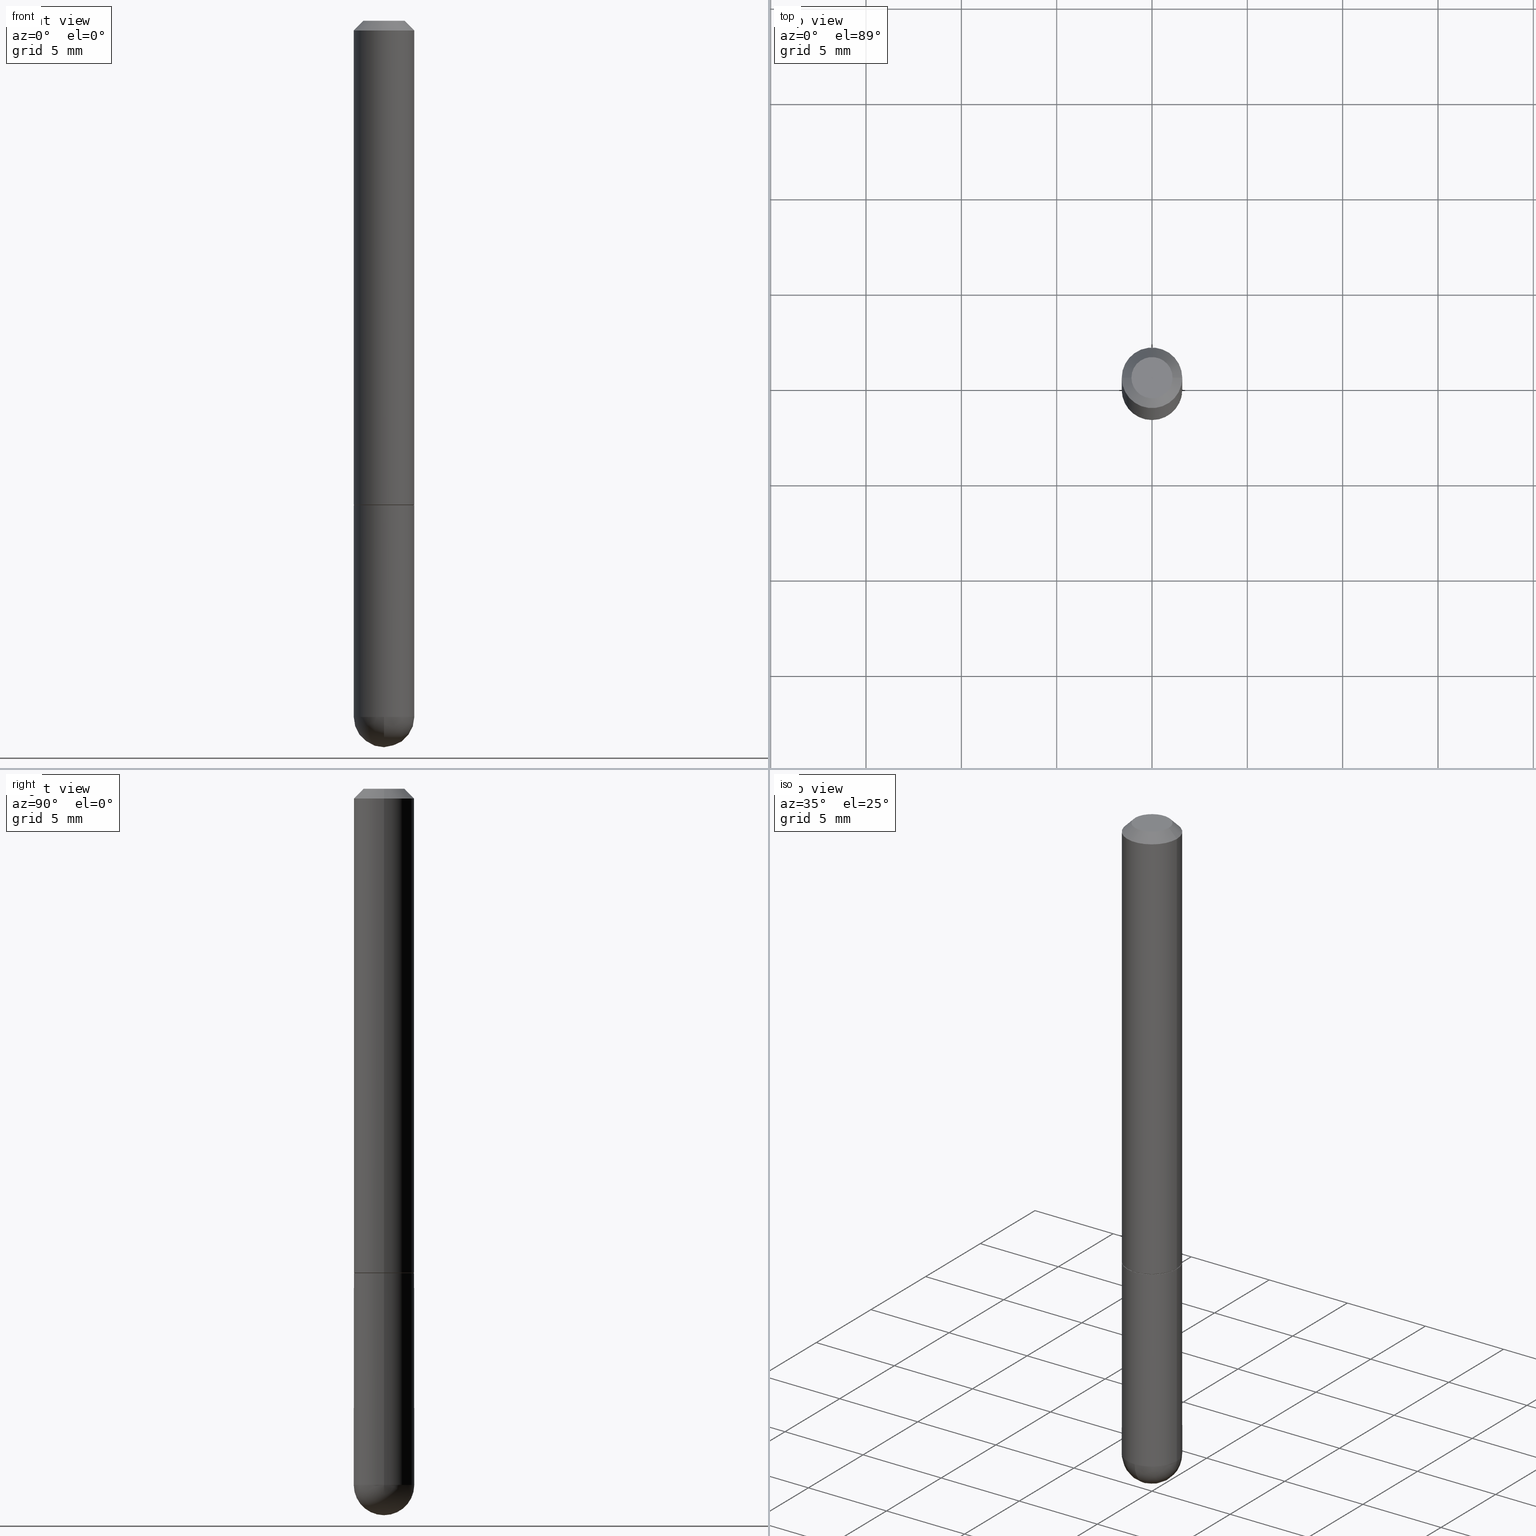
[diagram: canonical four-view strip — front | top / right | iso, engineering-drawing reading convention]
A machine part, canonical four-view strip (front | top / right | iso — engineering-drawing reading convention). The complete STEP part file that produces these views, byte-faithful:
ISO-10303-21;
HEADER;
FILE_DESCRIPTION (( 'STEP AP203' ),
    '1' );
FILE_NAME ('30116.STEP',
    '2024-02-21T16:35:18',
    ( '' ),
    ( '' ),
    'SwSTEP 2.0',
    'SolidWorks 2023',
    '' );
FILE_SCHEMA (( 'CONFIG_CONTROL_DESIGN' ));
ENDSEC;

DATA;
#1 = ORIENTED_EDGE ( 'NONE', *, *, #375, .F. ) ;
#2 = ORIENTED_EDGE ( 'NONE', *, *, #218, .T. ) ;
#3 = FACE_OUTER_BOUND ( 'NONE', #340, .T. ) ;
#4 = AXIS2_PLACEMENT_3D ( 'NONE', #50, #75, #80 ) ;
#5 = CARTESIAN_POINT ( 'NONE',  ( -0.06149999999999999911, -3.054497556350684369E-15, -1.000000000000000222 ) ) ;
#6 = APPROVAL ( #272, 'UNSPECIFIED' ) ;
#7 = EDGE_LOOP ( 'NONE', ( #401, #101, #261, #12 ) ) ;
#8 = ORIENTED_EDGE ( 'NONE', *, *, #312, .T. ) ;
#9 = DIRECTION ( 'NONE',  ( 1.000000000000000000, -6.982962677686269866E-15, 0.000000000000000000 ) ) ;
#10 = ORIENTED_EDGE ( 'NONE', *, *, #297, .F. ) ;
#11 = FACE_OUTER_BOUND ( 'NONE', #71, .T. ) ;
#12 = ORIENTED_EDGE ( 'NONE', *, *, #77, .F. ) ;
#13 = CARTESIAN_POINT ( 'NONE',  ( 3.515361408891134418E-29, -5.019004424587023131E-15, -1.437500000000000222 ) ) ;
#14 = EDGE_LOOP ( 'NONE', ( #256, #240, #171, #108 ) ) ;
#15 = EDGE_CURVE ( 'NONE', #131, #214, #356, .T. ) ;
#16 = CARTESIAN_POINT ( 'NONE',  ( 2.443023337378951835E-29, -3.487989857504302970E-15, -0.9990000000000002212 ) ) ;
#17 = DIRECTION ( 'NONE',  ( 1.000000000000000000, -6.982962677686266711E-15, 4.876176775795935793E-29 ) ) ;
#18 = DIRECTION ( 'NONE',  ( -2.445468806185136597E-29, 3.491481338843145583E-15, 1.000000000000000000 ) ) ;
#19 = CONICAL_SURFACE ( 'NONE', #156, 0.06149999999999999911, 0.7853981633975507526 ) ;
#20 = EDGE_CURVE ( 'NONE', #144, #248, #350, .T. ) ;
#21 = FACE_OUTER_BOUND ( 'NONE', #73, .T. ) ;
#22 =( NAMED_UNIT ( * ) PLANE_ANGLE_UNIT ( ) SI_UNIT ( $, .RADIAN. ) );
#23 = EDGE_CURVE ( 'NONE', #176, #196, #49, .T. ) ;
#24 = AXIS2_PLACEMENT_3D ( 'NONE', #34, #219, #93 ) ;
#25 = PERSON_AND_ORGANIZATION_ROLE ( 'design_owner' ) ;
#26 = DATE_AND_TIME ( #405, #120 ) ;
#27 = CC_DESIGN_PERSON_AND_ORGANIZATION_ASSIGNMENT ( #125, #57, ( #298 ) ) ;
#28 = AXIS2_PLACEMENT_3D ( 'NONE', #166, #282, #412 ) ;
#29 = DATE_AND_TIME ( #56, #88 ) ;
#30 = AXIS2_PLACEMENT_3D ( 'NONE', #410, #192, #316 ) ;
#31 = FACE_OUTER_BOUND ( 'NONE', #307, .T. ) ;
#32 = DIRECTION ( 'NONE',  ( 1.000000000000000000, -6.982962677686268288E-15, 0.000000000000000000 ) ) ;
#33 = VERTEX_POINT ( 'NONE', #63 ) ;
#34 = CARTESIAN_POINT ( 'NONE',  ( 4.890937612370289799E-31, -6.982962677686315028E-17, -0.02000000000000006981 ) ) ;
#35 = DIRECTION ( 'NONE',  ( 1.000000000000000000, -6.982962677686266711E-15, 4.852736867747410488E-29 ) ) ;
#36 = ORIENTED_EDGE ( 'NONE', *, *, #390, .F. ) ;
#37 = LINE ( 'NONE', #5, #360 ) ;
#38 = AXIS2_PLACEMENT_3D ( 'NONE', #230, #105, #43 ) ;
#39 = DIRECTION ( 'NONE',  ( 1.000000000000000000, -6.982962677686265922E-15, 4.876176775795935793E-29 ) ) ;
#40 = DIRECTION ( 'NONE',  ( -2.445468806185136877E-29, 3.491481338843145188E-15, 1.000000000000000000 ) ) ;
#41 = EDGE_CURVE ( 'NONE', #196, #131, #274, .T. ) ;
#42 = DIRECTION ( 'NONE',  ( -1.000000000000000000, 7.105427357601001070E-15, -4.926315508542082329E-29 ) ) ;
#43 = DIRECTION ( 'NONE',  ( 1.000000000000000000, -6.982962677686269866E-15, 0.000000000000000000 ) ) ;
#44 = DIMENSIONAL_EXPONENTS ( 1.000000000000000000, 0.000000000000000000, 0.000000000000000000, 0.000000000000000000, 0.000000000000000000, 0.000000000000000000, 0.000000000000000000 ) ;
#45 = ADVANCED_FACE ( 'NONE', ( #379 ), #280, .T. ) ;
#46 =( GEOMETRIC_REPRESENTATION_CONTEXT ( 3 ) GLOBAL_UNCERTAINTY_ASSIGNED_CONTEXT ( ( #130 ) ) GLOBAL_UNIT_ASSIGNED_CONTEXT ( ( #398, #22, #112 ) ) REPRESENTATION_CONTEXT ( 'NONE', 'WORKASPACE' ) );
#47 = APPLICATION_PROTOCOL_DEFINITION ( 'international standard', 'config_control_design', 1994, #55 ) ;
#48 = FACE_OUTER_BOUND ( 'NONE', #323, .T. ) ;
#49 = CIRCLE ( 'NONE', #243, 0.06249999999999995143 ) ;
#50 = CARTESIAN_POINT ( 'NONE',  ( 2.445468806185136877E-29, -3.491481338843145977E-15, -1.000000000000000222 ) ) ;
#51 = CC_DESIGN_PERSON_AND_ORGANIZATION_ASSIGNMENT ( #87, #25, ( #395 ) ) ;
#52 = AXIS2_PLACEMENT_3D ( 'NONE', #299, #146, #264 ) ;
#53 = DIRECTION ( 'NONE',  ( -1.000000000000000000, 6.982962677686265922E-15, -4.883557194083112340E-29 ) ) ;
#54 = ORIENTED_EDGE ( 'NONE', *, *, #308, .T. ) ;
#55 = APPLICATION_CONTEXT ( 'configuration controlled 3d designs of mechanical parts and assemblies' ) ;
#56 = CALENDAR_DATE ( 2024, 21, 2 ) ;
#57 = PERSON_AND_ORGANIZATION_ROLE ( 'design_supplier' ) ;
#58 = DATE_AND_TIME ( #344, #239 ) ;
#59 = DATE_AND_TIME ( #155, #132 ) ;
#60 = CARTESIAN_POINT ( 'NONE',  ( 3.515361408891134418E-29, -5.019004424587023131E-15, -1.437500000000000222 ) ) ;
#61 = CIRCLE ( 'NONE', #300, 0.06250000000000000000 ) ;
#62 = FACE_OUTER_BOUND ( 'NONE', #224, .T. ) ;
#63 = CARTESIAN_POINT ( 'NONE',  ( 0.06249999999999995143, -4.986107516375835278E-16, -0.02000000000000006981 ) ) ;
#64 = DIRECTION ( 'NONE',  ( -1.000000000000000000, 6.982962677686265922E-15, -4.876176775795935793E-29 ) ) ;
#65 = VERTEX_POINT ( 'NONE', #158 ) ;
#66 = DIRECTION ( 'NONE',  ( -0.7071067811865469066, 2.468850131082251144E-15, -0.7071067811865479058 ) ) ;
#67 = ORIENTED_EDGE ( 'NONE', *, *, #234, .T. ) ;
#68 = DIRECTION ( 'NONE',  ( -2.445468806185136597E-29, 3.491481338843145583E-15, 1.000000000000000000 ) ) ;
#69 = APPROVAL_PERSON_ORGANIZATION ( #381, #6, #94 ) ;
#70 = VECTOR ( 'NONE', #355, 39.37007874015748143 ) ;
#71 = EDGE_LOOP ( 'NONE', ( #104, #81 ) ) ;
#72 = DIRECTION ( 'NONE',  ( -2.445468806185136597E-29, 3.491481338843145583E-15, 1.000000000000000000 ) ) ;
#73 = EDGE_LOOP ( 'NONE', ( #318, #198, #1, #209 ) ) ;
#74 = CARTESIAN_POINT ( 'NONE',  ( 3.184241630977247611E-29, -5.493186792727071849E-15, -1.437500000000000000 ) ) ;
#75 = DIRECTION ( 'NONE',  ( -2.445468806185136597E-29, 3.491481338843145583E-15, 1.000000000000000000 ) ) ;
#76 = AXIS2_PLACEMENT_3D ( 'NONE', #13, #68, #200 ) ;
#77 = EDGE_CURVE ( 'NONE', #343, #203, #110, .T. ) ;
#78 = DIRECTION ( 'NONE',  ( -2.445468806185136597E-29, 3.491481338843145583E-15, 1.000000000000000000 ) ) ;
#79 = MANIFOLD_SOLID_BREP ( 'Body-Move/Copy2[1]', #338 ) ;
#80 = DIRECTION ( 'NONE',  ( 1.000000000000000000, -6.982962677686262766E-15, 0.000000000000000000 ) ) ;
#81 = ORIENTED_EDGE ( 'NONE', *, *, #363, .T. ) ;
#82 = CIRCLE ( 'NONE', #38, 0.06149999999999999911 ) ;
#83 = DESIGN_CONTEXT ( 'detailed design', #96, 'design' ) ;
#84 = ADVANCED_FACE ( 'NONE', ( #31 ), #98, .T. ) ;
#85 = APPROVAL_ROLE ( '' ) ;
#86 = ORIENTED_EDGE ( 'NONE', *, *, #363, .F. ) ;
#87 = PERSON_AND_ORGANIZATION ( #334, #160 ) ;
#88 = LOCAL_TIME ( 11, 35, 18.00000000000000000, #409 ) ;
#89 = PERSON_AND_ORGANIZATION ( #334, #160 ) ;
#90 = VECTOR ( 'NONE', #262, 39.37007874015748143 ) ;
#91 = CALENDAR_DATE ( 2024, 21, 2 ) ;
#92 = VERTEX_POINT ( 'NONE', #249 ) ;
#93 = DIRECTION ( 'NONE',  ( -1.000000000000000000, 6.982962677686266711E-15, 0.000000000000000000 ) ) ;
#94 = APPROVAL_ROLE ( '' ) ;
#95 = DIRECTION ( 'NONE',  ( 2.438088387897960049E-29, -3.491481338843145188E-15, -1.000000000000000000 ) ) ;
#96 = APPLICATION_CONTEXT ( 'configuration controlled 3d designs of mechanical parts and assemblies' ) ;
#97 = EDGE_LOOP ( 'NONE', ( #106, #2, #351, #250 ) ) ;
#98 = CONICAL_SURFACE ( 'NONE', #28, 0.06249999999999995143, 0.7853981633974476129 ) ;
#99 = CLOSED_SHELL ( 'NONE', ( #258, #383, #121, #84, #411, #139, #147, #352 ) ) ;
#100 = DIRECTION ( 'NONE',  ( 6.982962677686265922E-15, 1.000000000000000000, -4.370956789862807739E-15 ) ) ;
#101 = ORIENTED_EDGE ( 'NONE', *, *, #288, .T. ) ;
#102 = LINE ( 'NONE', #177, #90 ) ;
#103 = EDGE_LOOP ( 'NONE', ( #330, #291, #67, #251 ) ) ;
#104 = ORIENTED_EDGE ( 'NONE', *, *, #404, .T. ) ;
#105 = DIRECTION ( 'NONE',  ( -2.445468806185136597E-29, 3.491481338843145583E-15, 1.000000000000000000 ) ) ;
#106 = ORIENTED_EDGE ( 'NONE', *, *, #20, .T. ) ;
#107 = AXIS2_PLACEMENT_3D ( 'NONE', #153, #206, #232 ) ;
#108 = ORIENTED_EDGE ( 'NONE', *, *, #234, .F. ) ;
#109 = DIRECTION ( 'NONE',  ( -2.445468806185136877E-29, 3.491481338843145188E-15, 1.000000000000000000 ) ) ;
#110 = CIRCLE ( 'NONE', #30, 0.06250000000000013878 ) ;
#111 = CARTESIAN_POINT ( 'NONE',  ( 0.06149999999999999911, -3.920933543520851632E-15, -1.000000000000000222 ) ) ;
#112 =( NAMED_UNIT ( * ) SI_UNIT ( $, .STERADIAN. ) SOLID_ANGLE_UNIT ( ) );
#113 = CYLINDRICAL_SURFACE ( 'NONE', #241, 0.06249999999999997224 ) ;
#114 = APPROVAL_PERSON_ORGANIZATION ( #89, #277, #220 ) ;
#115 = CIRCLE ( 'NONE', #4, 0.06250000000000000000 ) ;
#116 = CARTESIAN_POINT ( 'NONE',  ( 0.000000000000000000, 0.000000000000000000, 0.000000000000000000 ) ) ;
#117 = DIRECTION ( 'NONE',  ( -2.445468806185136597E-29, 3.491481338843145583E-15, 1.000000000000000000 ) ) ;
#118 = DIRECTION ( 'NONE',  ( -2.445468806185136597E-29, 3.491481338843145583E-15, 1.000000000000000000 ) ) ;
#119 = DIRECTION ( 'NONE',  ( -2.445468806185136597E-29, 3.491481338843145583E-15, 1.000000000000000000 ) ) ;
#120 = LOCAL_TIME ( 11, 35, 18.00000000000000000, #382 ) ;
#121 = ADVANCED_FACE ( 'NONE', ( #322 ), #129, .T. ) ;
#122 = CARTESIAN_POINT ( 'NONE',  ( 0.000000000000000000, 0.000000000000000000, 0.000000000000000000 ) ) ;
#123 = PLANE ( 'NONE',  #151 ) ;
#124 = PERSON_AND_ORGANIZATION ( #334, #160 ) ;
#125 = PERSON_AND_ORGANIZATION ( #334, #160 ) ;
#126 = PRODUCT_DEFINITION ( 'UNKNOWN', '', #298, #83 ) ;
#127 = ORIENTED_EDGE ( 'NONE', *, *, #297, .T. ) ;
#128 = DIRECTION ( 'NONE',  ( 1.000000000000000000, -6.982962677686266711E-15, 4.876176775795935793E-29 ) ) ;
#129 = CONICAL_SURFACE ( 'NONE', #24, 0.06249999999999995143, 0.7853981633974476129 ) ;
#130 = UNCERTAINTY_MEASURE_WITH_UNIT (LENGTH_MEASURE( 1.000000000000000082E-05 ), #398, 'distance_accuracy_value', 'NONE');
#131 = VERTEX_POINT ( 'NONE', #284 ) ;
#132 = LOCAL_TIME ( 11, 35, 18.00000000000000000, #242 ) ;
#133 = PLANE ( 'NONE',  #183 ) ;
#134 = ORIENTED_EDGE ( 'NONE', *, *, #375, .T. ) ;
#135 = AXIS2_PLACEMENT_3D ( 'NONE', #400, #53, #184 ) ;
#136 = DIRECTION ( 'NONE',  ( -0.7071067811866199593, 7.493145998870616062E-15, 0.7071067811864750752 ) ) ;
#137 = ORIENTED_EDGE ( 'NONE', *, *, #15, .T. ) ;
#138 = CARTESIAN_POINT ( 'NONE',  ( 0.06250000000000004163, -4.364351673553919652E-16, 3.047610484872461972E-30 ) ) ;
#139 = ADVANCED_FACE ( 'NONE', ( #278 ), #19, .T. ) ;
#140 = EDGE_LOOP ( 'NONE', ( #10, #227, #194, #137, #86 ) ) ;
#141 = CC_DESIGN_APPROVAL ( #277, ( #287 ) ) ;
#142 = DIRECTION ( 'NONE',  ( -2.445468806185136877E-29, 3.491481338843145188E-15, 1.000000000000000000 ) ) ;
#143 = EDGE_CURVE ( 'NONE', #372, #201, #182, .T. ) ;
#144 = VERTEX_POINT ( 'NONE', #111 ) ;
#145 = AXIS2_PLACEMENT_3D ( 'NONE', #222, #225, #195 ) ;
#146 = DIRECTION ( 'NONE',  ( -2.445468806185136597E-29, 3.491481338843145583E-15, 1.000000000000000000 ) ) ;
#147 = ADVANCED_FACE ( 'NONE', ( #48 ), #123, .F. ) ;
#148 = CARTESIAN_POINT ( 'NONE',  ( 0.000000000000000000, 0.000000000000000000, 0.000000000000000000 ) ) ;
#149 = DIRECTION ( 'NONE',  ( 1.000000000000000000, -6.982962677686270655E-15, 0.000000000000000000 ) ) ;
#150 = ADVANCED_BREP_SHAPE_REPRESENTATION ( '30116', ( #79, #233, #407 ), #46 ) ;
#151 = AXIS2_PLACEMENT_3D ( 'NONE', #263, #229, #39 ) ;
#152 = DIRECTION ( 'NONE',  ( 1.000000000000000000, -6.982962677686268288E-15, 0.000000000000000000 ) ) ;
#153 = CARTESIAN_POINT ( 'NONE',  ( 3.184241630977247611E-29, -5.493186792727071849E-15, -1.437500000000000000 ) ) ;
#154 = CARTESIAN_POINT ( 'NONE',  ( 2.445468806185136877E-29, -3.491481338843145977E-15, -1.000000000000000222 ) ) ;
#155 = CALENDAR_DATE ( 2024, 21, 2 ) ;
#156 = AXIS2_PLACEMENT_3D ( 'NONE', #154, #117, #235 ) ;
#157 = DATE_TIME_ROLE ( 'creation_date' ) ;
#158 = CARTESIAN_POINT ( 'NONE',  ( 4.364351673554256397E-16, 0.06249999999999480971, -1.437500000000000444 ) ) ;
#159 = ADVANCED_FACE ( 'NONE', ( #11 ), #292, .F. ) ;
#160 = ORGANIZATION ( 'UNSPECIFIED', 'UNSPECIFIED', '' ) ;
#161 = DATE_TIME_ROLE ( 'classification_date' ) ;
#162 = ORIENTED_EDGE ( 'NONE', *, *, #199, .T. ) ;
#163 = AXIS2_PLACEMENT_3D ( 'NONE', #16, #78, #149 ) ;
#164 = AXIS2_PLACEMENT_3D ( 'NONE', #253, #169, #128 ) ;
#165 = VERTEX_POINT ( 'NONE', #202 ) ;
#166 = CARTESIAN_POINT ( 'NONE',  ( 4.890937612370289799E-31, -6.982962677686315028E-17, -0.02000000000000006981 ) ) ;
#167 = ORIENTED_EDGE ( 'NONE', *, *, #143, .T. ) ;
#168 = CARTESIAN_POINT ( 'NONE',  ( 3.184241630977247611E-29, -5.493186792727071849E-15, -1.437500000000000000 ) ) ;
#169 = DIRECTION ( 'NONE',  ( -2.445468806185136597E-29, 3.491481338843145583E-15, 1.000000000000000000 ) ) ;
#170 = CARTESIAN_POINT ( 'NONE',  ( 3.515361408891134418E-29, -5.019004424587023131E-15, -1.437500000000000222 ) ) ;
#171 = ORIENTED_EDGE ( 'NONE', *, *, #358, .F. ) ;
#172 = CARTESIAN_POINT ( 'NONE',  ( -7.202574758913015802E-45, 1.028336787562508620E-30, 2.945273618169283567E-16 ) ) ;
#173 = VECTOR ( 'NONE', #66, 39.37007874015748854 ) ;
#174 = DIRECTION ( 'NONE',  ( -7.105427357601001859E-15, -1.000000000000000000, 0.000000000000000000 ) ) ;
#175 = ORIENTED_EDGE ( 'NONE', *, *, #288, .F. ) ;
#176 = VERTEX_POINT ( 'NONE', #289 ) ;
#177 = CARTESIAN_POINT ( 'NONE',  ( 0.06149999999999999911, -3.920933543520851632E-15, -1.000000000000000222 ) ) ;
#178 = LINE ( 'NONE', #197, #70 ) ;
#179 = ORIENTED_EDGE ( 'NONE', *, *, #143, .F. ) ;
#180 = DIRECTION ( 'NONE',  ( 0.7071067811865469066, -7.319954787623252890E-15, -0.7071067811865479058 ) ) ;
#181 = SPHERICAL_SURFACE ( 'NONE', #135, 0.06250000000000018041 ) ;
#182 = LINE ( 'NONE', #273, #173 ) ;
#183 = AXIS2_PLACEMENT_3D ( 'NONE', #387, #353, #64 ) ;
#184 = DIRECTION ( 'NONE',  ( 6.982962677686265922E-15, 1.000000000000000000, -4.370956789862807739E-15 ) ) ;
#185 = CC_DESIGN_DATE_AND_TIME_ASSIGNMENT ( #58, #157, ( #126 ) ) ;
#186 = EDGE_CURVE ( 'NONE', #343, #201, #361, .T. ) ;
#187 = CC_DESIGN_PERSON_AND_ORGANIZATION_ASSIGNMENT ( #314, #311, ( #126 ) ) ;
#188 = SECURITY_CLASSIFICATION_LEVEL ( 'unclassified' ) ;
#189 = ORIENTED_EDGE ( 'NONE', *, *, #199, .F. ) ;
#190 = SHAPE_DEFINITION_REPRESENTATION ( #207, #150 ) ;
#191 = APPROVAL_DATE_TIME ( #59, #6 ) ;
#192 = DIRECTION ( 'NONE',  ( -2.445468806185136597E-29, 3.491481338843145583E-15, 1.000000000000000000 ) ) ;
#193 = CIRCLE ( 'NONE', #76, 0.06249999999999995143 ) ;
#194 = ORIENTED_EDGE ( 'NONE', *, *, #41, .T. ) ;
#195 = DIRECTION ( 'NONE',  ( 1.000000000000000000, -6.982962677686266711E-15, 4.852736867747410488E-29 ) ) ;
#196 = VERTEX_POINT ( 'NONE', #321 ) ;
#197 = CARTESIAN_POINT ( 'NONE',  ( -0.06249999999999997224, 4.440892098500624190E-16, -3.074334431409315063E-30 ) ) ;
#198 = ORIENTED_EDGE ( 'NONE', *, *, #367, .T. ) ;
#199 = EDGE_CURVE ( 'NONE', #165, #372, #254, .T. ) ;
#200 = DIRECTION ( 'NONE',  ( 1.000000000000000000, -6.982962677686268288E-15, 0.000000000000000000 ) ) ;
#201 = VERTEX_POINT ( 'NONE', #204 ) ;
#202 = CARTESIAN_POINT ( 'NONE',  ( 0.04249999999999961448, -3.950909582714350189E-16, 2.945273618169308219E-16 ) ) ;
#203 = VERTEX_POINT ( 'NONE', #252 ) ;
#204 = CARTESIAN_POINT ( 'NONE',  ( -0.06249999999999995143, 3.666055405785281740E-16, -0.02000000000000006981 ) ) ;
#205 = AXIS2_PLACEMENT_3D ( 'NONE', #370, #118, #335 ) ;
#206 = DIRECTION ( 'NONE',  ( 1.000000000000000000, -6.982962677686265922E-15, 4.883557194083112340E-29 ) ) ;
#207 = PRODUCT_DEFINITION_SHAPE ( 'NONE', 'NONE',  #126 ) ;
#208 = DIRECTION ( 'NONE',  ( -2.445468806185136597E-29, 3.491481338843145583E-15, 1.000000000000000000 ) ) ;
#209 = ORIENTED_EDGE ( 'NONE', *, *, #41, .F. ) ;
#210 =( LENGTH_UNIT ( ) NAMED_UNIT ( * ) SI_UNIT ( $, .METRE. ) );
#211 = PRODUCT_RELATED_PRODUCT_CATEGORY ( 'detail', '', ( #395 ) ) ;
#212 = VECTOR ( 'NONE', #109, 39.37007874015748143 ) ;
#213 = CARTESIAN_POINT ( 'NONE',  ( 2.445468806185136877E-29, -3.491481338843145977E-15, -1.000000000000000222 ) ) ;
#214 = VERTEX_POINT ( 'NONE', #327 ) ;
#215 = APPROVAL_DATE_TIME ( #26, #345 ) ;
#216 = APPROVAL_STATUS ( 'not_yet_approved' ) ;
#217 = AXIS2_PLACEMENT_3D ( 'NONE', #359, #95, #295 ) ;
#218 = EDGE_CURVE ( 'NONE', #248, #343, #37, .T. ) ;
#219 = DIRECTION ( 'NONE',  ( 2.445468806185136597E-29, -3.491481338843145583E-15, -1.000000000000000000 ) ) ;
#220 = APPROVAL_ROLE ( '' ) ;
#221 = APPROVAL_STATUS ( 'not_yet_approved' ) ;
#222 = CARTESIAN_POINT ( 'NONE',  ( -7.202574758913015802E-45, 1.028336787562508620E-30, 2.945273618169283567E-16 ) ) ;
#223 = ORIENTED_EDGE ( 'NONE', *, *, #332, .T. ) ;
#224 = EDGE_LOOP ( 'NONE', ( #342, #228, #231, #319 ) ) ;
#225 = DIRECTION ( 'NONE',  ( -2.445468806185136597E-29, 3.491481338843145583E-15, 1.000000000000000000 ) ) ;
#226 = FACE_OUTER_BOUND ( 'NONE', #97, .T. ) ;
#227 = ORIENTED_EDGE ( 'NONE', *, *, #23, .T. ) ;
#228 = ORIENTED_EDGE ( 'NONE', *, *, #237, .T. ) ;
#229 = DIRECTION ( 'NONE',  ( -2.438088387897960049E-29, 3.491481338843145188E-15, 1.000000000000000000 ) ) ;
#230 = CARTESIAN_POINT ( 'NONE',  ( 2.445468806185136877E-29, -3.491481338843145977E-15, -1.000000000000000222 ) ) ;
#231 = ORIENTED_EDGE ( 'NONE', *, *, #23, .F. ) ;
#232 = DIRECTION ( 'NONE',  ( 6.982962677686266711E-15, 1.000000000000000000, 0.000000000000000000 ) ) ;
#233 = MANIFOLD_SOLID_BREP ( 'Body-Move/Copy2[2]', #99 ) ;
#234 = EDGE_CURVE ( 'NONE', #203, #33, #257, .T. ) ;
#235 = DIRECTION ( 'NONE',  ( 1.000000000000000000, -6.982962677686269866E-15, 0.000000000000000000 ) ) ;
#236 = FACE_OUTER_BOUND ( 'NONE', #103, .T. ) ;
#237 = EDGE_CURVE ( 'NONE', #354, #196, #380, .T. ) ;
#238 = CARTESIAN_POINT ( 'NONE',  ( 0.000000000000000000, 0.000000000000000000, 0.000000000000000000 ) ) ;
#239 = LOCAL_TIME ( 11, 35, 18.00000000000000000, #313 ) ;
#240 = ORIENTED_EDGE ( 'NONE', *, *, #186, .T. ) ;
#241 = AXIS2_PLACEMENT_3D ( 'NONE', #238, #119, #393 ) ;
#242 = COORDINATED_UNIVERSAL_TIME_OFFSET ( 5, 0, .BEHIND. ) ;
#243 = AXIS2_PLACEMENT_3D ( 'NONE', #60, #317, #32 ) ;
#244 = PERSON_AND_ORGANIZATION_ROLE ( 'creator' ) ;
#245 = DIRECTION ( 'NONE',  ( 0.000000000000000000, 0.000000000000000000, 1.000000000000000000 ) ) ;
#246 = CONICAL_SURFACE ( 'NONE', #385, 0.06149999999999999911, 0.7853981633975507526 ) ;
#247 = ADVANCED_FACE ( 'NONE', ( #62 ), #259, .T. ) ;
#248 = VERTEX_POINT ( 'NONE', #388 ) ;
#249 = CARTESIAN_POINT ( 'NONE',  ( -0.06250000000000000000, -3.811153671865022332E-15, -1.000000000000000222 ) ) ;
#250 = ORIENTED_EDGE ( 'NONE', *, *, #255, .F. ) ;
#251 = ORIENTED_EDGE ( 'NONE', *, *, #312, .F. ) ;
#252 = CARTESIAN_POINT ( 'NONE',  ( 0.06250000000000013878, -3.924425024859695428E-15, -0.9990000000000002212 ) ) ;
#253 = CARTESIAN_POINT ( 'NONE',  ( 0.000000000000000000, 0.000000000000000000, 0.000000000000000000 ) ) ;
#254 = CIRCLE ( 'NONE', #365, 0.04249999999999961448 ) ;
#255 = EDGE_CURVE ( 'NONE', #144, #203, #102, .T. ) ;
#256 = ORIENTED_EDGE ( 'NONE', *, *, #377, .T. ) ;
#257 = LINE ( 'NONE', #138, #315 ) ;
#258 = ADVANCED_FACE ( 'NONE', ( #226 ), #246, .T. ) ;
#259 = SPHERICAL_SURFACE ( 'NONE', #304, 0.06250000000000018041 ) ;
#260 = CARTESIAN_POINT ( 'NONE',  ( 2.445468806185136877E-29, -3.491481338843145977E-15, -1.000000000000000222 ) ) ;
#261 = ORIENTED_EDGE ( 'NONE', *, *, #255, .T. ) ;
#262 = DIRECTION ( 'NONE',  ( 0.7071067811866199593, -2.468850131083015945E-15, 0.7071067811864750752 ) ) ;
#263 = CARTESIAN_POINT ( 'NONE',  ( 2.445468806185136877E-29, -3.491481338843145977E-15, -1.000000000000000222 ) ) ;
#264 = DIRECTION ( 'NONE',  ( 1.000000000000000000, -6.982962677686266711E-15, 0.000000000000000000 ) ) ;
#265 = LOCAL_TIME ( 11, 35, 18.00000000000000000, #276 ) ;
#266 = DIRECTION ( 'NONE',  ( 1.000000000000000000, -6.982962677686262766E-15, 0.000000000000000000 ) ) ;
#267 = CC_DESIGN_PERSON_AND_ORGANIZATION_ASSIGNMENT ( #124, #406, ( #287 ) ) ;
#268 = CIRCLE ( 'NONE', #145, 0.04249999999999961448 ) ;
#269 = DIRECTION ( 'NONE',  ( 1.000000000000000000, -6.982962677686266711E-15, 4.876176775795935793E-29 ) ) ;
#270 = LINE ( 'NONE', #397, #373 ) ;
#271 = AXIS2_PLACEMENT_3D ( 'NONE', #366, #336, #152 ) ;
#272 = APPROVAL_STATUS ( 'not_yet_approved' ) ;
#273 = CARTESIAN_POINT ( 'NONE',  ( -0.06249999999999995143, 3.666055405785281740E-16, -0.02000000000000006981 ) ) ;
#274 = CIRCLE ( 'NONE', #281, 0.06249999999999995143 ) ;
#275 = PERSON_AND_ORGANIZATION ( #334, #160 ) ;
#276 = COORDINATED_UNIVERSAL_TIME_OFFSET ( 5, 0, .BEHIND. ) ;
#277 = APPROVAL ( #221, 'UNSPECIFIED' ) ;
#278 = FACE_OUTER_BOUND ( 'NONE', #7, .T. ) ;
#279 = CIRCLE ( 'NONE', #205, 0.06249999999999995143 ) ;
#280 = CYLINDRICAL_SURFACE ( 'NONE', #164, 0.06249999999999997224 ) ;
#281 = AXIS2_PLACEMENT_3D ( 'NONE', #170, #286, #408 ) ;
#282 = DIRECTION ( 'NONE',  ( 2.445468806185136597E-29, -3.491481338843145583E-15, -1.000000000000000000 ) ) ;
#283 = ORIENTED_EDGE ( 'NONE', *, *, #390, .T. ) ;
#284 = CARTESIAN_POINT ( 'NONE',  ( 0.06249999999999995143, -4.691678049070475040E-15, -1.437500000000000222 ) ) ;
#285 = CARTESIAN_POINT ( 'NONE',  ( -0.06250000000000013878, -1.334820532290516771E-15, -0.9990000000000002212 ) ) ;
#286 = DIRECTION ( 'NONE',  ( -2.445468806185136597E-29, 3.491481338843145583E-15, 1.000000000000000000 ) ) ;
#287 = SECURITY_CLASSIFICATION ( '', '', #188 ) ;
#288 = EDGE_CURVE ( 'NONE', #248, #144, #82, .T. ) ;
#289 = CARTESIAN_POINT ( 'NONE',  ( -0.06249999999999995143, -3.811153671865022332E-15, -1.437500000000000222 ) ) ;
#290 = CIRCLE ( 'NONE', #163, 0.06250000000000013878 ) ;
#291 = ORIENTED_EDGE ( 'NONE', *, *, #77, .T. ) ;
#292 = PLANE ( 'NONE',  #217 ) ;
#293 = DIRECTION ( 'NONE',  ( -2.445468806185136597E-29, 3.491481338843145583E-15, 1.000000000000000000 ) ) ;
#294 = ORIENTED_EDGE ( 'NONE', *, *, #20, .F. ) ;
#295 = DIRECTION ( 'NONE',  ( -1.000000000000000000, 6.982962677686265922E-15, -4.876176775795935793E-29 ) ) ;
#296 = ORIENTED_EDGE ( 'NONE', *, *, #404, .F. ) ;
#297 = EDGE_CURVE ( 'NONE', #176, #92, #178, .T. ) ;
#298 = PRODUCT_DEFINITION_FORMATION_WITH_SPECIFIED_SOURCE ( 'ANY', '', #395, .NOT_KNOWN. ) ;
#299 = CARTESIAN_POINT ( 'NONE',  ( 4.890937612370289799E-31, -6.982962677686315028E-17, -0.02000000000000006981 ) ) ;
#300 = AXIS2_PLACEMENT_3D ( 'NONE', #213, #368, #266 ) ;
#301 = VECTOR ( 'NONE', #40, 39.37007874015748143 ) ;
#302 = FACE_OUTER_BOUND ( 'NONE', #140, .T. ) ;
#303 = CC_DESIGN_DATE_AND_TIME_ASSIGNMENT ( #378, #161, ( #287 ) ) ;
#304 = AXIS2_PLACEMENT_3D ( 'NONE', #168, #389, #100 ) ;
#305 = FACE_OUTER_BOUND ( 'NONE', #14, .T. ) ;
#306 = LENGTH_MEASURE_WITH_UNIT ( LENGTH_MEASURE( 0.02539999999999999897 ), #210 );
#307 = EDGE_LOOP ( 'NONE', ( #36, #386, #167, #8 ) ) ;
#308 = EDGE_CURVE ( 'NONE', #65, #176, #193, .T. ) ;
#309 = CIRCLE ( 'NONE', #52, 0.06249999999999995143 ) ;
#310 = MECHANICAL_CONTEXT ( 'NONE', #55, 'mechanical' ) ;
#311 = PERSON_AND_ORGANIZATION_ROLE ( 'creator' ) ;
#312 = EDGE_CURVE ( 'NONE', #201, #33, #309, .T. ) ;
#313 = COORDINATED_UNIVERSAL_TIME_OFFSET ( 5, 0, .BEHIND. ) ;
#314 = PERSON_AND_ORGANIZATION ( #334, #160 ) ;
#315 = VECTOR ( 'NONE', #142, 39.37007874015748143 ) ;
#316 = DIRECTION ( 'NONE',  ( 1.000000000000000000, -6.982962677686270655E-15, 0.000000000000000000 ) ) ;
#317 = DIRECTION ( 'NONE',  ( -2.445468806185136597E-29, 3.491481338843145583E-15, 1.000000000000000000 ) ) ;
#318 = ORIENTED_EDGE ( 'NONE', *, *, #237, .F. ) ;
#319 = ORIENTED_EDGE ( 'NONE', *, *, #308, .F. ) ;
#320 = EDGE_LOOP ( 'NONE', ( #189, #283, #357, #179 ) ) ;
#321 = CARTESIAN_POINT ( 'NONE',  ( -4.440892098500294840E-16, -0.06250000000000532907, -1.437500000000000000 ) ) ;
#322 = FACE_OUTER_BOUND ( 'NONE', #320, .T. ) ;
#323 = EDGE_LOOP ( 'NONE', ( #294, #175 ) ) ;
#324 = CARTESIAN_POINT ( 'NONE',  ( 3.339755826017505008E-29, -5.707577355157432999E-15, -1.500000000000000222 ) ) ;
#325 = CARTESIAN_POINT ( 'NONE',  ( 0.06249999999999997224, -4.364351673553914722E-16, 3.047610484872458469E-30 ) ) ;
#326 = ORIENTED_EDGE ( 'NONE', *, *, #15, .F. ) ;
#327 = CARTESIAN_POINT ( 'NONE',  ( 0.06250000000000000000, -3.927916506198537646E-15, -1.000000000000000222 ) ) ;
#328 = DIRECTION ( 'NONE',  ( 1.000000000000000000, -6.982962677686269866E-15, 0.000000000000000000 ) ) ;
#329 = CARTESIAN_POINT ( 'NONE',  ( 2.445468806185136877E-29, -3.491481338843145977E-15, -1.000000000000000222 ) ) ;
#330 = ORIENTED_EDGE ( 'NONE', *, *, #186, .F. ) ;
#331 = AXIS2_PLACEMENT_3D ( 'NONE', #74, #42, #174 ) ;
#332 = EDGE_CURVE ( 'NONE', #372, #165, #268, .T. ) ;
#333 = CARTESIAN_POINT ( 'NONE',  ( -0.04249999999999961448, 3.316907271900964263E-16, 2.945273618169261873E-16 ) ) ;
#334 = PERSON ( 'UNSPECIFIED', 'UNSPECIFIED', 'UNSPECIFIED', ('UNSPECIFIED'), ('UNSPECIFIED'), ('UNSPECIFIED') ) ;
#335 = DIRECTION ( 'NONE',  ( 1.000000000000000000, -6.982962677686266711E-15, 0.000000000000000000 ) ) ;
#336 = DIRECTION ( 'NONE',  ( -2.445468806185136597E-29, 3.491481338843145583E-15, 1.000000000000000000 ) ) ;
#337 = CIRCLE ( 'NONE', #271, 0.06249999999999995143 ) ;
#338 = CLOSED_SHELL ( 'NONE', ( #45, #247, #376, #159, #399 ) ) ;
#339 = CYLINDRICAL_SURFACE ( 'NONE', #371, 0.06250000000000004163 ) ;
#340 = EDGE_LOOP ( 'NONE', ( #223, #162 ) ) ;
#341 = PERSON_AND_ORGANIZATION ( #334, #160 ) ;
#342 = ORIENTED_EDGE ( 'NONE', *, *, #367, .F. ) ;
#343 = VERTEX_POINT ( 'NONE', #285 ) ;
#344 = CALENDAR_DATE ( 2024, 21, 2 ) ;
#345 = APPROVAL ( #216, 'UNSPECIFIED' ) ;
#346 = APPROVAL_DATE_TIME ( #29, #277 ) ;
#347 = APPROVAL_PERSON_ORGANIZATION ( #275, #345, #85 ) ;
#348 = AXIS2_PLACEMENT_3D ( 'NONE', #148, #208, #17 ) ;
#349 = CARTESIAN_POINT ( 'NONE',  ( -0.06250000000000004163, 4.440892098500629120E-16, -3.074334431409318216E-30 ) ) ;
#350 = CIRCLE ( 'NONE', #402, 0.06149999999999999911 ) ;
#351 = ORIENTED_EDGE ( 'NONE', *, *, #377, .F. ) ;
#352 = ADVANCED_FACE ( 'NONE', ( #3 ), #133, .F. ) ;
#353 = DIRECTION ( 'NONE',  ( 2.438088387897960049E-29, -3.491481338843145188E-15, -1.000000000000000000 ) ) ;
#354 = VERTEX_POINT ( 'NONE', #324 ) ;
#355 = DIRECTION ( 'NONE',  ( -2.445468806185136877E-29, 3.491481338843145188E-15, 1.000000000000000000 ) ) ;
#356 = LINE ( 'NONE', #325, #301 ) ;
#357 = ORIENTED_EDGE ( 'NONE', *, *, #358, .T. ) ;
#358 = EDGE_CURVE ( 'NONE', #33, #201, #279, .T. ) ;
#359 = CARTESIAN_POINT ( 'NONE',  ( 4.364351673554160748E-16, 0.06249999999999650974, -1.000000000000000444 ) ) ;
#360 = VECTOR ( 'NONE', #136, 39.37007874015748143 ) ;
#361 = LINE ( 'NONE', #349, #212 ) ;
#362 = CC_DESIGN_APPROVAL ( #345, ( #298 ) ) ;
#363 = EDGE_CURVE ( 'NONE', #92, #214, #115, .T. ) ;
#364 = CYLINDRICAL_SURFACE ( 'NONE', #348, 0.06250000000000004163 ) ;
#365 = AXIS2_PLACEMENT_3D ( 'NONE', #172, #72, #35 ) ;
#366 = CARTESIAN_POINT ( 'NONE',  ( 3.515361408891134418E-29, -5.019004424587023131E-15, -1.437500000000000222 ) ) ;
#367 = EDGE_CURVE ( 'NONE', #354, #65, #392, .T. ) ;
#368 = DIRECTION ( 'NONE',  ( -2.445468806185136597E-29, 3.491481338843145583E-15, 1.000000000000000000 ) ) ;
#369 = CC_DESIGN_APPROVAL ( #6, ( #126 ) ) ;
#370 = CARTESIAN_POINT ( 'NONE',  ( 4.890937612370289799E-31, -6.982962677686315028E-17, -0.02000000000000006981 ) ) ;
#371 = AXIS2_PLACEMENT_3D ( 'NONE', #116, #18, #269 ) ;
#372 = VERTEX_POINT ( 'NONE', #333 ) ;
#373 = VECTOR ( 'NONE', #180, 39.37007874015748854 ) ;
#374 = APPLICATION_PROTOCOL_DEFINITION ( 'international standard', 'config_control_design', 1994, #96 ) ;
#375 = EDGE_CURVE ( 'NONE', #131, #65, #337, .T. ) ;
#376 = ADVANCED_FACE ( 'NONE', ( #21 ), #181, .T. ) ;
#377 = EDGE_CURVE ( 'NONE', #203, #343, #290, .T. ) ;
#378 = DATE_AND_TIME ( #91, #265 ) ;
#379 = FACE_OUTER_BOUND ( 'NONE', #384, .T. ) ;
#380 = CIRCLE ( 'NONE', #331, 0.06250000000000018041 ) ;
#381 = PERSON_AND_ORGANIZATION ( #334, #160 ) ;
#382 = COORDINATED_UNIVERSAL_TIME_OFFSET ( 5, 0, .BEHIND. ) ;
#383 = ADVANCED_FACE ( 'NONE', ( #305 ), #339, .T. ) ;
#384 = EDGE_LOOP ( 'NONE', ( #54, #127, #296, #326, #134 ) ) ;
#385 = AXIS2_PLACEMENT_3D ( 'NONE', #329, #391, #9 ) ;
#386 = ORIENTED_EDGE ( 'NONE', *, *, #332, .F. ) ;
#387 = CARTESIAN_POINT ( 'NONE',  ( 2.967759138016636432E-16, 0.04249999999999961448, -1.124275992368138813E-18 ) ) ;
#388 = CARTESIAN_POINT ( 'NONE',  ( -0.06149999999999999911, -3.049199102002462361E-15, -1.000000000000000222 ) ) ;
#389 = DIRECTION ( 'NONE',  ( -1.000000000000000000, 6.982962677686265922E-15, -4.883557194083112340E-29 ) ) ;
#390 = EDGE_CURVE ( 'NONE', #165, #33, #270, .T. ) ;
#391 = DIRECTION ( 'NONE',  ( -2.445468806185136597E-29, 3.491481338843145583E-15, 1.000000000000000000 ) ) ;
#392 = CIRCLE ( 'NONE', #107, 0.06250000000000018041 ) ;
#393 = DIRECTION ( 'NONE',  ( 1.000000000000000000, -6.982962677686266711E-15, 4.876176775795935793E-29 ) ) ;
#394 = CC_DESIGN_PERSON_AND_ORGANIZATION_ASSIGNMENT ( #341, #244, ( #298 ) ) ;
#395 = PRODUCT ( '30116', '30116', '', ( #310 ) ) ;
#396 = CC_DESIGN_SECURITY_CLASSIFICATION ( #287, ( #298 ) ) ;
#397 = CARTESIAN_POINT ( 'NONE',  ( 0.06249999999999995143, -4.986107516375835278E-16, -0.02000000000000006981 ) ) ;
#398 =( CONVERSION_BASED_UNIT ( 'INCH', #306 ) LENGTH_UNIT ( ) NAMED_UNIT ( #44 ) );
#399 = ADVANCED_FACE ( 'NONE', ( #302 ), #113, .T. ) ;
#400 = CARTESIAN_POINT ( 'NONE',  ( 3.184241630977247611E-29, -5.493186792727071849E-15, -1.437500000000000000 ) ) ;
#401 = ORIENTED_EDGE ( 'NONE', *, *, #218, .F. ) ;
#402 = AXIS2_PLACEMENT_3D ( 'NONE', #260, #293, #328 ) ;
#403 = DIRECTION ( 'NONE',  ( 1.000000000000000000, 0.000000000000000000, 0.000000000000000000 ) ) ;
#404 = EDGE_CURVE ( 'NONE', #214, #92, #61, .T. ) ;
#405 = CALENDAR_DATE ( 2024, 21, 2 ) ;
#406 = PERSON_AND_ORGANIZATION_ROLE ( 'classification_officer' ) ;
#407 = AXIS2_PLACEMENT_3D ( 'NONE', #122, #245, #403 ) ;
#408 = DIRECTION ( 'NONE',  ( 1.000000000000000000, -6.982962677686268288E-15, 0.000000000000000000 ) ) ;
#409 = COORDINATED_UNIVERSAL_TIME_OFFSET ( 5, 0, .BEHIND. ) ;
#410 = CARTESIAN_POINT ( 'NONE',  ( 2.443023337378951835E-29, -3.487989857504302970E-15, -0.9990000000000002212 ) ) ;
#411 = ADVANCED_FACE ( 'NONE', ( #236 ), #364, .T. ) ;
#412 = DIRECTION ( 'NONE',  ( -1.000000000000000000, 6.982962677686266711E-15, 0.000000000000000000 ) ) ;
ENDSEC;
END-ISO-10303-21;
